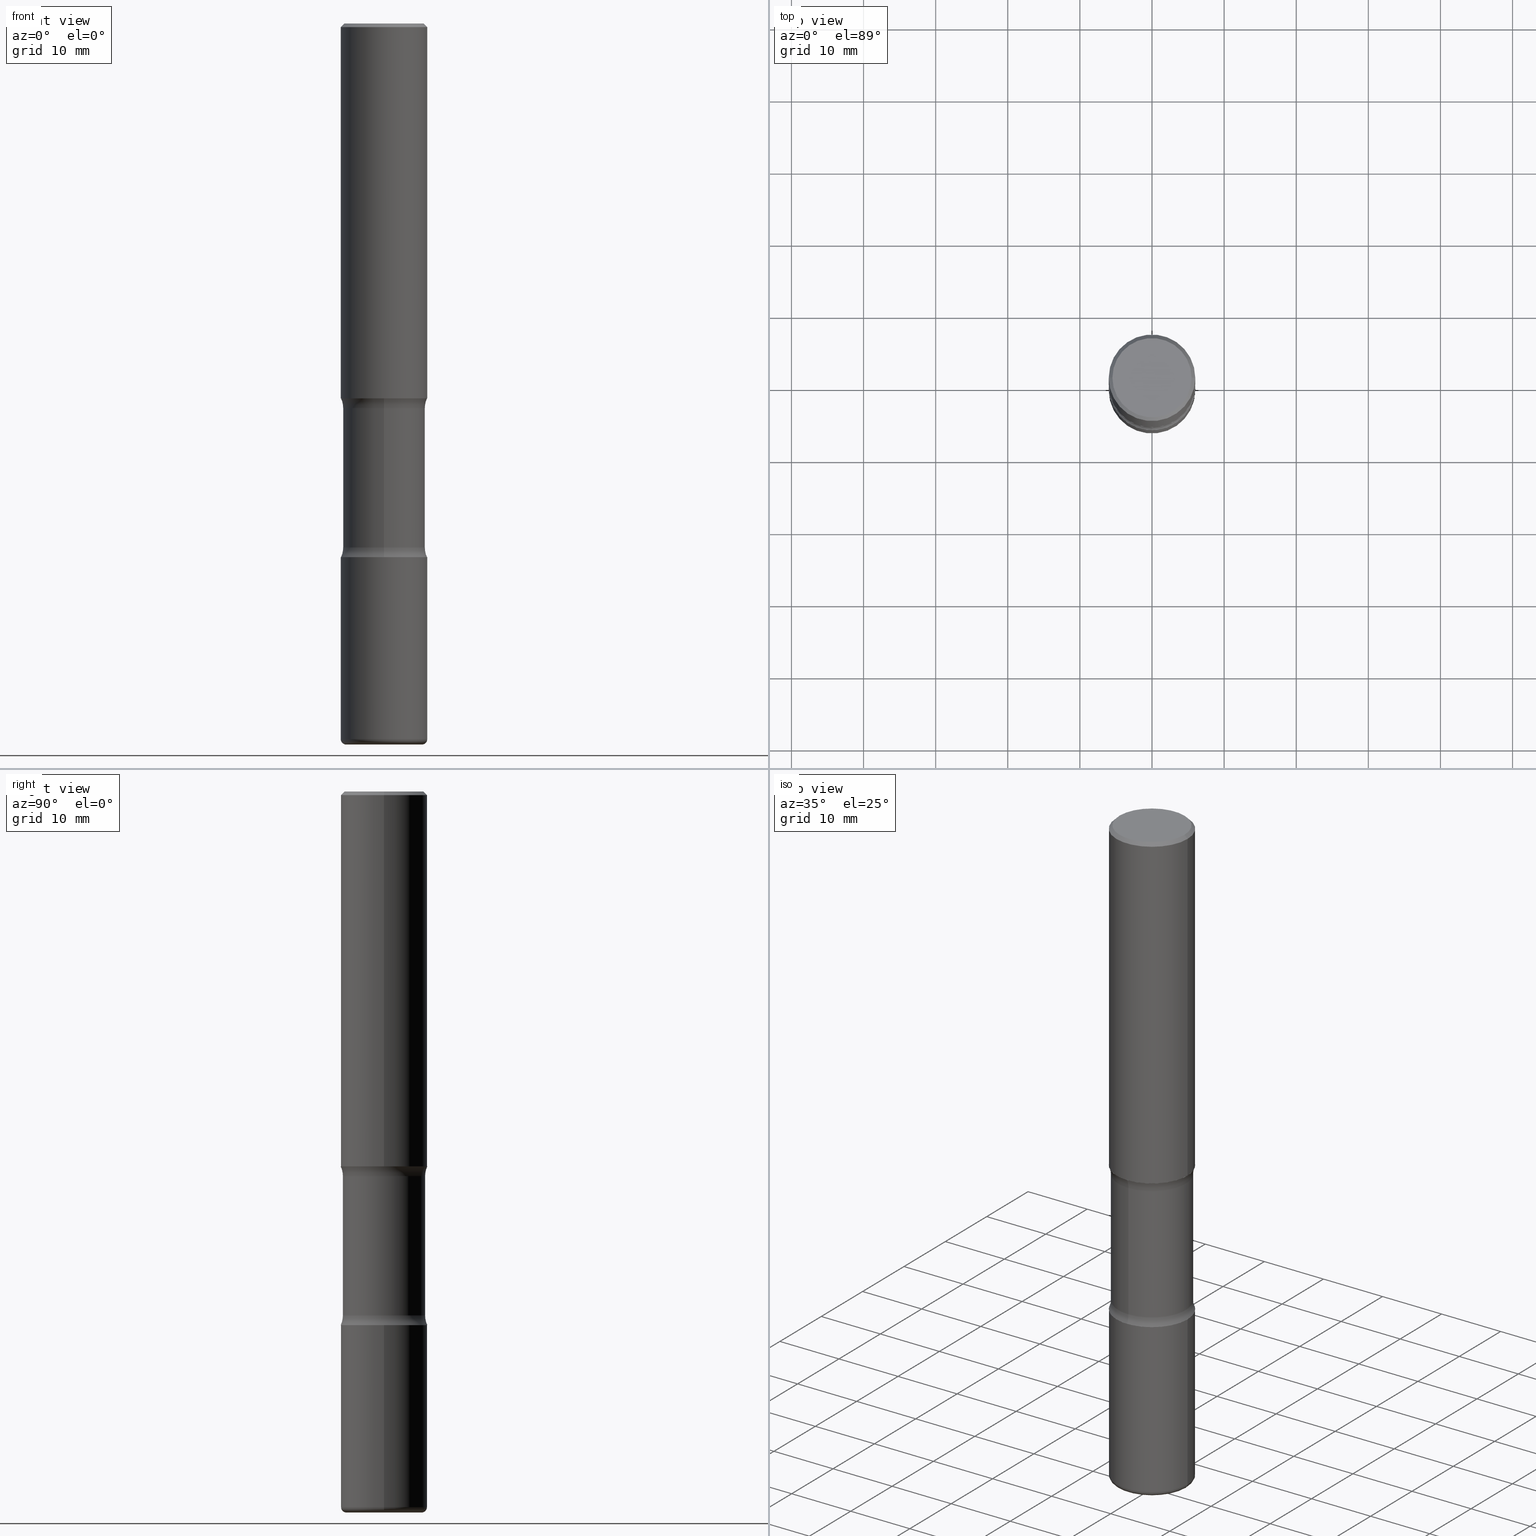
[diagram: canonical four-view strip — front | top / right | iso, engineering-drawing reading convention]
A machine part, canonical four-view strip (front | top / right | iso — engineering-drawing reading convention). The complete STEP part file that produces these views, byte-faithful:
ISO-10303-21;
HEADER;
FILE_DESCRIPTION (( 'STEP AP203' ),
    '1' );
FILE_NAME ('47694.STEP',
    '2024-03-02T07:19:26',
    ( '' ),
    ( '' ),
    'SwSTEP 2.0',
    'SolidWorks 2023',
    '' );
FILE_SCHEMA (( 'CONFIG_CONTROL_DESIGN' ));
ENDSEC;

DATA;
#1 = AXIS2_PLACEMENT_3D ( 'NONE', #298, #459, #68 ) ;
#2 = AXIS2_PLACEMENT_3D ( 'NONE', #234, #534, #149 ) ;
#3 = ORIENTED_EDGE ( 'NONE', *, *, #417, .T. ) ;
#4 = CARTESIAN_POINT ( 'NONE',  ( 0.2161999999999998368, -1.586759460484351002E-15, 4.268512490111238857E-18 ) ) ;
#5 = EDGE_LOOP ( 'NONE', ( #381, #388, #206, #378 ) ) ;
#6 = DIRECTION ( 'NONE',  ( -6.982962677686265922E-15, -1.000000000000000000, 3.376177443336566513E-15 ) ) ;
#7 = AXIS2_PLACEMENT_3D ( 'NONE', #420, #352, #346 ) ;
#8 = AXIS2_PLACEMENT_3D ( 'NONE', #311, #513, #557 ) ;
#9 = EDGE_CURVE ( 'NONE', #103, #114, #559, .T. ) ;
#10 =( NAMED_UNIT ( * ) PLANE_ANGLE_UNIT ( ) SI_UNIT ( $, .RADIAN. ) );
#11 = PERSON_AND_ORGANIZATION ( #426, #186 ) ;
#12 = CARTESIAN_POINT ( 'NONE',  ( -1.579972688886734072E-15, -0.2244000000000073713, -2.100216601173594544 ) ) ;
#13 = ORIENTED_EDGE ( 'NONE', *, *, #16, .T. ) ;
#14 = COORDINATED_UNIVERSAL_TIME_OFFSET ( 5, 0, .BEHIND. ) ;
#15 = ORIENTED_EDGE ( 'NONE', *, *, #275, .T. ) ;
#16 = EDGE_CURVE ( 'NONE', #379, #26, #428, .T. ) ;
#17 = DIRECTION ( 'NONE',  ( -2.438088387897960049E-29, 3.491481338843145188E-15, 1.000000000000000000 ) ) ;
#18 = CONICAL_SURFACE ( 'NONE', #125, 0.2361999999999998823, 0.7853981633974479459 ) ;
#19 = AXIS2_PLACEMENT_3D ( 'NONE', #503, #217, #37 ) ;
#20 = ORIENTED_EDGE ( 'NONE', *, *, #371, .F. ) ;
#21 = DIRECTION ( 'NONE',  ( 2.525985086076564115E-29, -3.376177443336566513E-15, -1.000000000000000000 ) ) ;
#22 = ORIENTED_EDGE ( 'NONE', *, *, #335, .F. ) ;
#23 = CYLINDRICAL_SURFACE ( 'NONE', #133, 0.2361999999999999933 ) ;
#24 = DIRECTION ( 'NONE',  ( 1.000000000000000000, -6.982962677686266711E-15, 4.876176775795935793E-29 ) ) ;
#25 = EDGE_CURVE ( 'NONE', #450, #64, #178, .T. ) ;
#26 = VERTEX_POINT ( 'NONE', #512 ) ;
#27 = DIRECTION ( 'NONE',  ( -2.445468806185136597E-29, 3.491481338843145583E-15, 1.000000000000000000 ) ) ;
#28 = ADVANCED_FACE ( 'NONE', ( #124 ), #485, .T. ) ;
#29 = AXIS2_PLACEMENT_3D ( 'NONE', #315, #472, #86 ) ;
#30 = ORIENTED_EDGE ( 'NONE', *, *, #264, .F. ) ;
#31 = PLANE ( 'NONE',  #396 ) ;
#32 =( CONVERSION_BASED_UNIT ( 'INCH', #271 ) LENGTH_UNIT ( ) NAMED_UNIT ( #312 ) );
#33 = PERSON_AND_ORGANIZATION_ROLE ( 'creator' ) ;
#34 = DIRECTION ( 'NONE',  ( -2.445468806185136597E-29, 3.491481338843145583E-15, 1.000000000000000000 ) ) ;
#35 = PERSON_AND_ORGANIZATION ( #426, #186 ) ;
#36 = DIRECTION ( 'NONE',  ( 2.525985086076564115E-29, -3.376177443336566513E-15, -1.000000000000000000 ) ) ;
#37 = DIRECTION ( 'NONE',  ( 1.000000000000000000, -6.982962677686265133E-15, 0.000000000000000000 ) ) ;
#38 = EDGE_CURVE ( 'NONE', #458, #373, #539, .T. ) ;
#39 = AXIS2_PLACEMENT_3D ( 'NONE', #270, #43, #177 ) ;
#40 = AXIS2_PLACEMENT_3D ( 'NONE', #172, #121, #399 ) ;
#41 = CARTESIAN_POINT ( 'NONE',  ( 5.006363740022212241E-29, -7.147760596879688202E-15, -2.047200000000000131 ) ) ;
#42 = DIRECTION ( 'NONE',  ( 6.982962677686265922E-15, 1.000000000000000000, -3.376177443336566513E-15 ) ) ;
#43 = DIRECTION ( 'NONE',  ( -2.445468806185136597E-29, 3.491481338843145583E-15, 1.000000000000000000 ) ) ;
#44 = EDGE_CURVE ( 'NONE', #64, #450, #71, .T. ) ;
#45 = AXIS2_PLACEMENT_3D ( 'NONE', #350, #74, #550 ) ;
#46 = VERTEX_POINT ( 'NONE', #142 ) ;
#47 = MECHANICAL_CONTEXT ( 'NONE', #430, 'mechanical' ) ;
#48 = EDGE_CURVE ( 'NONE', #119, #556, #253, .T. ) ;
#49 = CARTESIAN_POINT ( 'NONE',  ( -2.397058000421302516E-15, -0.3494000000000099249, -2.860383398826404022 ) ) ;
#50 = PERSON_AND_ORGANIZATION ( #426, #186 ) ;
#51 = EDGE_CURVE ( 'NONE', #509, #384, #252, .T. ) ;
#52 = DIRECTION ( 'NONE',  ( 2.525985086076564115E-29, -3.376177443336566513E-15, -1.000000000000000000 ) ) ;
#53 = DATE_TIME_ROLE ( 'classification_date' ) ;
#54 = PLANE ( 'NONE',  #274 ) ;
#55 = AXIS2_PLACEMENT_3D ( 'NONE', #374, #519, #443 ) ;
#56 = AXIS2_PLACEMENT_3D ( 'NONE', #414, #17, #449 ) ;
#57 = ORIENTED_EDGE ( 'NONE', *, *, #255, .F. ) ;
#58 = DIRECTION ( 'NONE',  ( 6.982962677686265922E-15, 1.000000000000000000, -3.469747663417773452E-15 ) ) ;
#59 = EDGE_CURVE ( 'NONE', #434, #345, #372, .T. ) ;
#60 = ORIENTED_EDGE ( 'NONE', *, *, #542, .T. ) ;
#61 = AXIS2_PLACEMENT_3D ( 'NONE', #543, #424, #454 ) ;
#62 = ORIENTED_EDGE ( 'NONE', *, *, #255, .T. ) ;
#63 = EDGE_CURVE ( 'NONE', #145, #556, #242, .T. ) ;
#64 = VERTEX_POINT ( 'NONE', #393 ) ;
#65 = CARTESIAN_POINT ( 'NONE',  ( 0.2362000000000000766, -1.529059337532966657E-14, -3.907000000000000028 ) ) ;
#66 = FACE_OUTER_BOUND ( 'NONE', #245, .T. ) ;
#67 = ORIENTED_EDGE ( 'NONE', *, *, #188, .T. ) ;
#68 = DIRECTION ( 'NONE',  ( -1.000000000000000000, 7.105427357601001859E-15, 0.000000000000000000 ) ) ;
#69 = DIRECTION ( 'NONE',  ( 1.000000000000000000, -6.982962677686266711E-15, 4.876176775795936353E-29 ) ) ;
#70 = APPROVAL_ROLE ( '' ) ;
#71 = CIRCLE ( 'NONE', #401, 0.2362000000000001321 ) ;
#72 = CIRCLE ( 'NONE', #134, 0.2362000000000002431 ) ;
#73 = EDGE_CURVE ( 'NONE', #556, #119, #106, .T. ) ;
#74 = DIRECTION ( 'NONE',  ( -2.445468806185136597E-29, 3.491481338843145583E-15, 1.000000000000000000 ) ) ;
#75 = DIRECTION ( 'NONE',  ( -1.000000000000000000, 6.982962677686267499E-15, 0.000000000000000000 ) ) ;
#76 = CALENDAR_DATE ( 2024, 2, 3 ) ;
#77 = DIRECTION ( 'NONE',  ( 2.525985086076564115E-29, -3.376177443336566513E-15, -1.000000000000000000 ) ) ;
#78 = ADVANCED_FACE ( 'NONE', ( #306 ), #232, .T. ) ;
#79 = DIRECTION ( 'NONE',  ( -2.445468806185136597E-29, 3.491481338843145583E-15, 1.000000000000000000 ) ) ;
#80 = DIRECTION ( 'NONE',  ( 2.525985086076564115E-29, -3.376177443336566513E-15, -1.000000000000000000 ) ) ;
#81 = CARTESIAN_POINT ( 'NONE',  ( 0.000000000000000000, 0.000000000000000000, 0.000000000000000000 ) ) ;
#82 = ORIENTED_EDGE ( 'NONE', *, *, #44, .T. ) ;
#83 = TOROIDAL_SURFACE ( 'NONE', #514, 0.3493999999999999884, 0.1250000000000000000 ) ;
#84 = TOROIDAL_SURFACE ( 'NONE', #478, 0.3493999999999999884, 0.1250000000000000000 ) ;
#85 = CYLINDRICAL_SURFACE ( 'NONE', #221, 0.2362000000000002153 ) ;
#86 = DIRECTION ( 'NONE',  ( -1.000000000000000000, 6.982962677686267499E-15, 0.000000000000000000 ) ) ;
#87 = FACE_OUTER_BOUND ( 'NONE', #288, .T. ) ;
#88 = PRODUCT ( '47694', '47694', '', ( #47 ) ) ;
#89 = CARTESIAN_POINT ( 'NONE',  ( -0.2361999999999999933, 1.678301941865356591E-15, -1.161852468318208757E-29 ) ) ;
#90 = EDGE_CURVE ( 'NONE', #549, #145, #342, .T. ) ;
#91 = CIRCLE ( 'NONE', #61, 0.1249999999999999029 ) ;
#92 = ORIENTED_EDGE ( 'NONE', *, *, #355, .F. ) ;
#93 = CIRCLE ( 'NONE', #412, 0.2362000000000002431 ) ;
#94 = DIRECTION ( 'NONE',  ( -2.445468806185136877E-29, 3.491481338843145188E-15, 1.000000000000000000 ) ) ;
#95 = EDGE_CURVE ( 'NONE', #373, #458, #167, .T. ) ;
#96 = CARTESIAN_POINT ( 'NONE',  ( 5.070539682259229331E-29, -7.426630284172150130E-15, -2.100216601173595432 ) ) ;
#97 = DIRECTION ( 'NONE',  ( -2.525985086076564115E-29, 3.376177443336566513E-15, 1.000000000000000000 ) ) ;
#98 = PERSON_AND_ORGANIZATION ( #426, #186 ) ;
#99 = DIRECTION ( 'NONE',  ( 6.982962677686265922E-15, 1.000000000000000000, -3.652203200085913934E-15 ) ) ;
#100 = AXIS2_PLACEMENT_3D ( 'NONE', #506, #120, #552 ) ;
#101 = CC_DESIGN_SECURITY_CLASSIFICATION ( #314, ( #331 ) ) ;
#102 = ORIENTED_EDGE ( 'NONE', *, *, #261, .F. ) ;
#103 = VERTEX_POINT ( 'NONE', #256 ) ;
#104 = DIRECTION ( 'NONE',  ( 1.000000000000000000, -6.982962677686269077E-15, 0.000000000000000000 ) ) ;
#105 = LINE ( 'NONE', #423, #344 ) ;
#106 = CIRCLE ( 'NONE', #313, 0.2362000000000001321 ) ;
#107 = CIRCLE ( 'NONE', #516, 0.2243999999999999606 ) ;
#108 = EDGE_LOOP ( 'NONE', ( #496, #82, #249, #138 ) ) ;
#109 = ADVANCED_FACE ( 'NONE', ( #385 ), #429, .F. ) ;
#110 = EDGE_LOOP ( 'NONE', ( #510, #169, #158, #152 ) ) ;
#111 = DIRECTION ( 'NONE',  ( 6.982962677686265922E-15, 1.000000000000000000, -3.376177443336566513E-15 ) ) ;
#112 = DIRECTION ( 'NONE',  ( 6.982962677686265922E-15, 1.000000000000000000, -2.434802133390609815E-15 ) ) ;
#113 = APPROVAL_STATUS ( 'not_yet_approved' ) ;
#114 = VERTEX_POINT ( 'NONE', #291 ) ;
#115 = CARTESIAN_POINT ( 'NONE',  ( 4.890937612370289799E-31, -6.982962677686315028E-17, -0.02000000000000006981 ) ) ;
#116 = COORDINATED_UNIVERSAL_TIME_OFFSET ( 5, 0, .BEHIND. ) ;
#117 = ADVANCED_FACE ( 'NONE', ( #395 ), #502, .F. ) ;
#118 = AXIS2_PLACEMENT_3D ( 'NONE', #289, #334, #150 ) ;
#119 = VERTEX_POINT ( 'NONE', #153 ) ;
#120 = DIRECTION ( 'NONE',  ( 2.525985086076564115E-29, -3.376177443336566513E-15, -1.000000000000000000 ) ) ;
#121 = DIRECTION ( 'NONE',  ( -2.445468806185136597E-29, 3.491481338843145583E-15, 1.000000000000000000 ) ) ;
#122 = ORIENTED_EDGE ( 'NONE', *, *, #44, .F. ) ;
#123 = EDGE_CURVE ( 'NONE', #103, #349, #91, .T. ) ;
#124 = FACE_OUTER_BOUND ( 'NONE', #536, .T. ) ;
#125 = AXIS2_PLACEMENT_3D ( 'NONE', #558, #173, #75 ) ;
#126 = LOCAL_TIME ( 2, 19, 26.00000000000000000, #14 ) ;
#127 = CARTESIAN_POINT ( 'NONE',  ( 9.710227154047748282E-29, -1.362793696358492956E-14, -3.937000000000000277 ) ) ;
#128 = CC_DESIGN_DATE_AND_TIME_ASSIGNMENT ( #521, #53, ( #314 ) ) ;
#129 = APPROVAL_DATE_TIME ( #548, #400 ) ;
#130 = DIRECTION ( 'NONE',  ( 2.525985086076564115E-29, -3.376177443336566513E-15, -1.000000000000000000 ) ) ;
#131 = APPROVAL_ROLE ( '' ) ;
#132 = DIRECTION ( 'NONE',  ( 1.000000000000000000, -6.982962677686265922E-15, 0.000000000000000000 ) ) ;
#133 = AXIS2_PLACEMENT_3D ( 'NONE', #202, #341, #497 ) ;
#134 = AXIS2_PLACEMENT_3D ( 'NONE', #299, #500, #58 ) ;
#135 = LINE ( 'NONE', #484, #333 ) ;
#136 = CARTESIAN_POINT ( 'NONE',  ( 5.070539682259229331E-29, -7.426630284172150130E-15, -2.100216601173595432 ) ) ;
#137 = PRODUCT_DEFINITION_SHAPE ( 'NONE', 'NONE',  #287 ) ;
#138 = ORIENTED_EDGE ( 'NONE', *, *, #166, .F. ) ;
#139 = APPROVAL_STATUS ( 'not_yet_approved' ) ;
#140 = DIRECTION ( 'NONE',  ( 6.860497997771529985E-15, 1.000000000000000000, 0.000000000000000000 ) ) ;
#141 = AXIS2_PLACEMENT_3D ( 'NONE', #461, #488, #132 ) ;
#142 = CARTESIAN_POINT ( 'NONE',  ( -1.620449627073587747E-15, -0.2362000000000074318, -2.047199999999999243 ) ) ;
#143 = ADVANCED_FACE ( 'NONE', ( #493 ), #23, .T. ) ;
#144 = AXIS2_PLACEMENT_3D ( 'NONE', #154, #416, #24 ) ;
#145 = VERTEX_POINT ( 'NONE', #65 ) ;
#146 = PLANE ( 'NONE',  #118 ) ;
#147 = ADVANCED_FACE ( 'NONE', ( #499 ), #83, .F. ) ;
#148 = ORIENTED_EDGE ( 'NONE', *, *, #525, .T. ) ;
#149 = DIRECTION ( 'NONE',  ( 1.000000000000000000, -6.982962677686269077E-15, 0.000000000000000000 ) ) ;
#150 = DIRECTION ( 'NONE',  ( -1.000000000000000000, 6.982962677686265922E-15, -4.876176775795935793E-29 ) ) ;
#151 = EDGE_CURVE ( 'NONE', #487, #481, #283, .T. ) ;
#152 = ORIENTED_EDGE ( 'NONE', *, *, #48, .F. ) ;
#153 = CARTESIAN_POINT ( 'NONE',  ( -0.2362000000000001321, -1.022834771985753829E-14, -2.913400000000000212 ) ) ;
#154 = CARTESIAN_POINT ( 'NONE',  ( 0.000000000000000000, 0.000000000000000000, 0.000000000000000000 ) ) ;
#155 = CIRCLE ( 'NONE', #141, 0.2362000000000002431 ) ;
#156 = PERSON_AND_ORGANIZATION ( #426, #186 ) ;
#157 = LOCAL_TIME ( 2, 19, 26.00000000000000000, #226 ) ;
#158 = ORIENTED_EDGE ( 'NONE', *, *, #63, .T. ) ;
#159 = DIRECTION ( 'NONE',  ( 2.525985086076564115E-29, -3.376177443336566513E-15, -1.000000000000000000 ) ) ;
#160 = PERSON_AND_ORGANIZATION ( #426, #186 ) ;
#161 = ORIENTED_EDGE ( 'NONE', *, *, #404, .F. ) ;
#162 = ADVANCED_FACE ( 'NONE', ( #250 ), #31, .T. ) ;
#163 = DATE_TIME_ROLE ( 'creation_date' ) ;
#164 = DIRECTION ( 'NONE',  ( -2.445468806185136597E-29, 3.491481338843145583E-15, 1.000000000000000000 ) ) ;
#165 = DIRECTION ( 'NONE',  ( 1.000000000000000000, -6.982962677686266711E-15, 4.876176775795935793E-29 ) ) ;
#166 = EDGE_CURVE ( 'NONE', #345, #434, #406, .T. ) ;
#167 = CIRCLE ( 'NONE', #530, 0.2161999999999998368 ) ;
#168 = AXIS2_PLACEMENT_3D ( 'NONE', #49, #441, #140 ) ;
#169 = ORIENTED_EDGE ( 'NONE', *, *, #171, .T. ) ;
#170 = DIRECTION ( 'NONE',  ( 6.982962677686265922E-15, 1.000000000000000000, -3.469747663417773452E-15 ) ) ;
#171 = EDGE_CURVE ( 'NONE', #481, #145, #155, .T. ) ;
#172 = CARTESIAN_POINT ( 'NONE',  ( 9.554446625765329033E-29, -1.364121759086017004E-14, -3.907000000000000028 ) ) ;
#173 = DIRECTION ( 'NONE',  ( 2.445468806185136597E-29, -3.491481338843145583E-15, -1.000000000000000000 ) ) ;
#174 = DIRECTION ( 'NONE',  ( 1.000000000000000000, -6.982962677686269077E-15, 0.000000000000000000 ) ) ;
#175 = APPROVAL ( #113, 'UNSPECIFIED' ) ;
#176 = DIRECTION ( 'NONE',  ( 2.525985086076564115E-29, -3.376177443336566513E-15, -1.000000000000000000 ) ) ;
#177 = DIRECTION ( 'NONE',  ( 1.000000000000000000, -6.982962677686266711E-15, 4.876217060660159599E-29 ) ) ;
#178 = CIRCLE ( 'NONE', #477, 0.2362000000000001321 ) ;
#179 = LOCAL_TIME ( 2, 19, 26.00000000000000000, #116 ) ;
#180 = DIRECTION ( 'NONE',  ( 6.982962677686265922E-15, 1.000000000000000000, -2.313165108945183485E-15 ) ) ;
#181 = PERSON_AND_ORGANIZATION ( #426, #186 ) ;
#182 = CARTESIAN_POINT ( 'NONE',  ( 9.554446625765329033E-29, -1.364121759086017004E-14, -3.907000000000000028 ) ) ;
#183 = MANIFOLD_SOLID_BREP ( 'Body-Move/Copy2[4]', #241 ) ;
#184 = MANIFOLD_SOLID_BREP ( 'Body-Move/Copy2[1]', #553 ) ;
#185 = VECTOR ( 'NONE', #94, 39.37007874015748143 ) ;
#186 = ORGANIZATION ( 'UNSPECIFIED', 'UNSPECIFIED', '' ) ;
#187 = FACE_OUTER_BOUND ( 'NONE', #327, .T. ) ;
#188 = EDGE_CURVE ( 'NONE', #26, #114, #470, .T. ) ;
#189 =( NAMED_UNIT ( * ) SI_UNIT ( $, .STERADIAN. ) SOLID_ANGLE_UNIT ( ) );
#190 = DIRECTION ( 'NONE',  ( 1.000000000000000000, -6.982962677686265922E-15, 0.000000000000000000 ) ) ;
#191 = EDGE_LOOP ( 'NONE', ( #30, #305, #456, #60 ) ) ;
#192 = APPROVAL_DATE_TIME ( #446, #300 ) ;
#193 = DIRECTION ( 'NONE',  ( 1.000000000000000000, -6.982962677686269077E-15, 0.000000000000000000 ) ) ;
#194 = FACE_OUTER_BOUND ( 'NONE', #448, .T. ) ;
#195 = ORIENTED_EDGE ( 'NONE', *, *, #90, .T. ) ;
#196 = AXIS2_PLACEMENT_3D ( 'NONE', #408, #130, #526 ) ;
#197 = VECTOR ( 'NONE', #397, 39.37007874015748143 ) ;
#198 = ORIENTED_EDGE ( 'NONE', *, *, #355, .T. ) ;
#199 = CARTESIAN_POINT ( 'NONE',  ( 0.2362000000000002153, -1.649375784469497708E-15, 1.151752954443001069E-29 ) ) ;
#200 = ADVANCED_FACE ( 'NONE', ( #87 ), #18, .T. ) ;
#201 = ORIENTED_EDGE ( 'NONE', *, *, #335, .T. ) ;
#202 = CARTESIAN_POINT ( 'NONE',  ( 0.000000000000000000, 0.000000000000000000, 0.000000000000000000 ) ) ;
#203 = CARTESIAN_POINT ( 'NONE',  ( -0.2062000000000002442, -1.212186927944147467E-14, -3.936999999999999389 ) ) ;
#204 = ORIENTED_EDGE ( 'NONE', *, *, #90, .F. ) ;
#205 = CC_DESIGN_APPROVAL ( #300, ( #314 ) ) ;
#206 = ORIENTED_EDGE ( 'NONE', *, *, #73, .F. ) ;
#207 = CARTESIAN_POINT ( 'NONE',  ( 1.691236525744688514E-28, -3.314065279273575751E-15, -3.937000000000000277 ) ) ;
#208 = CALENDAR_DATE ( 2024, 2, 3 ) ;
#209 = ORIENTED_EDGE ( 'NONE', *, *, #16, .F. ) ;
#210 = DIRECTION ( 'NONE',  ( 2.438088387897960049E-29, -3.491481338843145188E-15, -1.000000000000000000 ) ) ;
#211 = DIRECTION ( 'NONE',  ( 6.982962677686265922E-15, 1.000000000000000000, -2.434802133390609815E-15 ) ) ;
#212 = ORIENTED_EDGE ( 'NONE', *, *, #264, .T. ) ;
#213 = CARTESIAN_POINT ( 'NONE',  ( 7.124628819939777829E-29, -1.017208173258562247E-14, -2.913400000000000212 ) ) ;
#214 = FACE_OUTER_BOUND ( 'NONE', #191, .T. ) ;
#215 = AXIS2_PLACEMENT_3D ( 'NONE', #96, #279, #99 ) ;
#216 = DIRECTION ( 'NONE',  ( -2.445468806185136597E-29, 3.491481338843145583E-15, 1.000000000000000000 ) ) ;
#217 = DIRECTION ( 'NONE',  ( -2.445468806185136597E-29, 3.491481338843145583E-15, 1.000000000000000000 ) ) ;
#218 = ORIENTED_EDGE ( 'NONE', *, *, #188, .F. ) ;
#219 = CIRCLE ( 'NONE', #507, 0.1250000000000000000 ) ;
#220 = ADVANCED_BREP_SHAPE_REPRESENTATION ( '47694', ( #184, #375, #183, #254 ), #433 ) ;
#221 = AXIS2_PLACEMENT_3D ( 'NONE', #81, #263, #165 ) ;
#222 = ORIENTED_EDGE ( 'NONE', *, *, #59, .F. ) ;
#223 = APPLICATION_PROTOCOL_DEFINITION ( 'international standard', 'config_control_design', 1994, #430 ) ;
#224 = DIRECTION ( 'NONE',  ( -1.000000000000000000, 6.982962677686265922E-15, -4.883557194083112340E-29 ) ) ;
#225 = ORIENTED_EDGE ( 'NONE', *, *, #166, .T. ) ;
#226 = COORDINATED_UNIVERSAL_TIME_OFFSET ( 5, 0, .BEHIND. ) ;
#227 = CC_DESIGN_PERSON_AND_ORGANIZATION_ASSIGNMENT ( #156, #33, ( #287 ) ) ;
#228 = PERSON_AND_ORGANIZATION_ROLE ( 'classification_officer' ) ;
#229 = DIRECTION ( 'NONE',  ( 6.982962677686265922E-15, 1.000000000000000000, -2.434802133390609421E-15 ) ) ;
#230 = APPLICATION_PROTOCOL_DEFINITION ( 'international standard', 'config_control_design', 1994, #321 ) ;
#231 = CARTESIAN_POINT ( 'NONE',  ( 0.2361999999999998823, -1.690279253850498179E-15, -0.02000000000000006981 ) ) ;
#232 = TOROIDAL_SURFACE ( 'NONE', #45, 0.2062000000000002442, 0.02999999999999969705 ) ;
#233 = APPROVAL_PERSON_ORGANIZATION ( #181, #400, #131 ) ;
#234 = CARTESIAN_POINT ( 'NONE',  ( 7.124628819939777829E-29, -1.017208173258562247E-14, -2.913400000000000212 ) ) ;
#235 = CARTESIAN_POINT ( 'NONE',  ( -2.397058000421320660E-15, -0.3494000000000072048, -2.100216601173594544 ) ) ;
#236 = CC_DESIGN_PERSON_AND_ORGANIZATION_ASSIGNMENT ( #50, #228, ( #314 ) ) ;
#237 = LINE ( 'NONE', #318, #353 ) ;
#238 = ORIENTED_EDGE ( 'NONE', *, *, #9, .T. ) ;
#239 = CARTESIAN_POINT ( 'NONE',  ( 6.994978375559792251E-29, -9.986975258939122984E-15, -2.860383398826405354 ) ) ;
#240 = ORIENTED_EDGE ( 'NONE', *, *, #38, .T. ) ;
#241 = CLOSED_SHELL ( 'NONE', ( #464, #147, #296, #527, #109, #308, #508, #551 ) ) ;
#242 = LINE ( 'NONE', #199, #452 ) ;
#243 = CARTESIAN_POINT ( 'NONE',  ( 9.710227154047748282E-29, -1.362793696358492956E-14, -3.937000000000000277 ) ) ;
#244 = CIRCLE ( 'NONE', #524, 0.2362000000000002431 ) ;
#245 = EDGE_LOOP ( 'NONE', ( #240, #365 ) ) ;
#246 = DIRECTION ( 'NONE',  ( -1.000000000000000000, 6.982962677686265922E-15, -4.876176775795935793E-29 ) ) ;
#247 = EDGE_LOOP ( 'NONE', ( #148, #492, #531, #204 ) ) ;
#248 = CARTESIAN_POINT ( 'NONE',  ( 6.994978375559792251E-29, -9.986975258939122984E-15, -2.860383398826405354 ) ) ;
#249 = ORIENTED_EDGE ( 'NONE', *, *, #404, .T. ) ;
#250 = FACE_OUTER_BOUND ( 'NONE', #410, .T. ) ;
#251 = FACE_OUTER_BOUND ( 'NONE', #5, .T. ) ;
#252 = CIRCLE ( 'NONE', #322, 0.2362000000000001321 ) ;
#253 = CIRCLE ( 'NONE', #2, 0.2362000000000001321 ) ;
#254 = AXIS2_PLACEMENT_3D ( 'NONE', #479, #473, #436 ) ;
#255 = EDGE_CURVE ( 'NONE', #384, #114, #219, .T. ) ;
#256 = CARTESIAN_POINT ( 'NONE',  ( 1.566976824872848494E-15, 0.2243999999999925499, -2.100216601173596320 ) ) ;
#257 = CYLINDRICAL_SURFACE ( 'NONE', #554, 0.2243999999999999329 ) ;
#258 = DATE_AND_TIME ( #76, #540 ) ;
#259 = EDGE_LOOP ( 'NONE', ( #15, #336 ) ) ;
#260 = DIRECTION ( 'NONE',  ( 1.000000000000000000, -6.982962677686266711E-15, 4.876217060660159599E-29 ) ) ;
#261 = EDGE_CURVE ( 'NONE', #379, #103, #292, .T. ) ;
#262 = ORIENTED_EDGE ( 'NONE', *, *, #95, .F. ) ;
#263 = DIRECTION ( 'NONE',  ( -2.445468806185136597E-29, 3.491481338843145583E-15, 1.000000000000000000 ) ) ;
#264 = EDGE_CURVE ( 'NONE', #379, #46, #303, .T. ) ;
#265 = CARTESIAN_POINT ( 'NONE',  ( 6.990709676060807691E-29, -9.993088279580958225E-15, -2.860383398826405354 ) ) ;
#266 = CIRCLE ( 'NONE', #168, 0.1250000000000000000 ) ;
#267 = AXIS2_PLACEMENT_3D ( 'NONE', #348, #380, #387 ) ;
#268 = EDGE_LOOP ( 'NONE', ( #422, #198, #67, #57 ) ) ;
#269 =( LENGTH_UNIT ( ) NAMED_UNIT ( * ) SI_UNIT ( $, .METRE. ) );
#270 = CARTESIAN_POINT ( 'NONE',  ( -1.043851414335219820E-46, 1.490343170380447200E-32, 4.268512490100411279E-18 ) ) ;
#271 = LENGTH_MEASURE_WITH_UNIT ( LENGTH_MEASURE( 0.02539999999999999897 ), #269 );
#272 = COORDINATED_UNIVERSAL_TIME_OFFSET ( 5, 0, .BEHIND. ) ;
#273 = UNCERTAINTY_MEASURE_WITH_UNIT (LENGTH_MEASURE( 1.000000000000000082E-05 ), #32, 'distance_accuracy_value', 'NONE');
#274 = AXIS2_PLACEMENT_3D ( 'NONE', #285, #97, #6 ) ;
#275 = EDGE_CURVE ( 'NONE', #384, #509, #437, .T. ) ;
#276 = CIRCLE ( 'NONE', #19, 0.2062000000000002442 ) ;
#277 = ORIENTED_EDGE ( 'NONE', *, *, #123, .F. ) ;
#278 = SECURITY_CLASSIFICATION_LEVEL ( 'unclassified' ) ;
#279 = DIRECTION ( 'NONE',  ( 2.525985086076564115E-29, -3.376177443336566513E-15, -1.000000000000000000 ) ) ;
#280 = EDGE_LOOP ( 'NONE', ( #453, #337, #195, #359 ) ) ;
#281 = CC_DESIGN_DATE_AND_TIME_ASSIGNMENT ( #457, #163, ( #287 ) ) ;
#282 = LINE ( 'NONE', #89, #185 ) ;
#283 = CIRCLE ( 'NONE', #1, 0.02999999999999967970 ) ;
#284 = CALENDAR_DATE ( 2024, 2, 3 ) ;
#285 = CARTESIAN_POINT ( 'NONE',  ( 7.124628819939777829E-29, -1.017208173258562247E-14, -2.913400000000000212 ) ) ;
#286 = ORIENTED_EDGE ( 'NONE', *, *, #340, .T. ) ;
#287 = PRODUCT_DEFINITION ( 'UNKNOWN', '', #331, #370 ) ;
#288 = EDGE_LOOP ( 'NONE', ( #505, #501, #201, #225 ) ) ;
#289 = CARTESIAN_POINT ( 'NONE',  ( 1.509716530915769534E-15, 0.2161999999999998368, -7.527240092128373149E-16 ) ) ;
#290 = EDGE_LOOP ( 'NONE', ( #498, #339 ) ) ;
#291 = CARTESIAN_POINT ( 'NONE',  ( 1.566976824872867821E-15, 0.2243999999999899686, -2.860383398826405799 ) ) ;
#292 = CIRCLE ( 'NONE', #495, 0.2243999999999999606 ) ;
#293 = CIRCLE ( 'NONE', #215, 0.2243999999999999606 ) ;
#294 = ORIENTED_EDGE ( 'NONE', *, *, #491, .T. ) ;
#295 = FACE_OUTER_BOUND ( 'NONE', #392, .T. ) ;
#296 = ADVANCED_FACE ( 'NONE', ( #405 ), #432, .F. ) ;
#297 = ORIENTED_EDGE ( 'NONE', *, *, #371, .T. ) ;
#298 = CARTESIAN_POINT ( 'NONE',  ( -0.2062000000000002442, -1.217607846972284232E-14, -3.907000000000000028 ) ) ;
#299 = CARTESIAN_POINT ( 'NONE',  ( 4.936620538380257512E-29, -7.247636831167487464E-15, -2.047200000000000131 ) ) ;
#300 = APPROVAL ( #139, 'UNSPECIFIED' ) ;
#301 = DIRECTION ( 'NONE',  ( 1.000000000000000000, -6.982962677686267499E-15, 0.000000000000000000 ) ) ;
#302 = DIRECTION ( 'NONE',  ( 2.525985086076564115E-29, -3.376177443336566513E-15, -1.000000000000000000 ) ) ;
#303 = CIRCLE ( 'NONE', #523, 0.1249999999999999029 ) ;
#304 = LOCAL_TIME ( 2, 19, 26.00000000000000000, #272 ) ;
#305 = ORIENTED_EDGE ( 'NONE', *, *, #417, .F. ) ;
#306 = FACE_OUTER_BOUND ( 'NONE', #247, .T. ) ;
#307 = CARTESIAN_POINT ( 'NONE',  ( 4.936620538380257512E-29, -7.247636831167487464E-15, -2.047200000000000131 ) ) ;
#308 = ADVANCED_FACE ( 'NONE', ( #476 ), #54, .F. ) ;
#309 = FACE_OUTER_BOUND ( 'NONE', #533, .T. ) ;
#310 = ORIENTED_EDGE ( 'NONE', *, *, #261, .T. ) ;
#311 = CARTESIAN_POINT ( 'NONE',  ( 5.088323202950023588E-29, -7.401163270367792936E-15, -2.100216601173595432 ) ) ;
#312 = DIMENSIONAL_EXPONENTS ( 1.000000000000000000, 0.000000000000000000, 0.000000000000000000, 0.000000000000000000, 0.000000000000000000, 0.000000000000000000, 0.000000000000000000 ) ;
#313 = AXIS2_PLACEMENT_3D ( 'NONE', #213, #79, #104 ) ;
#314 = SECURITY_CLASSIFICATION ( '', '', #278 ) ;
#315 = CARTESIAN_POINT ( 'NONE',  ( 4.890937612370289799E-31, -6.982962677686315028E-17, -0.02000000000000006981 ) ) ;
#316 = FACE_OUTER_BOUND ( 'NONE', #110, .T. ) ;
#317 = SHAPE_DEFINITION_REPRESENTATION ( #137, #220 ) ;
#318 = CARTESIAN_POINT ( 'NONE',  ( -0.2361999999999998823, 1.579546157692632438E-15, -0.02000000000000006981 ) ) ;
#319 = CC_DESIGN_PERSON_AND_ORGANIZATION_ASSIGNMENT ( #35, #391, ( #331 ) ) ;
#320 = EDGE_LOOP ( 'NONE', ( #518, #415 ) ) ;
#321 = APPLICATION_CONTEXT ( 'configuration controlled 3d designs of mechanical parts and assemblies' ) ;
#322 = AXIS2_PLACEMENT_3D ( 'NONE', #389, #545, #180 ) ;
#323 = AXIS2_PLACEMENT_3D ( 'NONE', #421, #27, #69 ) ;
#324 = PERSON_AND_ORGANIZATION_ROLE ( 'design_owner' ) ;
#325 = DIRECTION ( 'NONE',  ( -2.445468806185136877E-29, 3.491481338843145188E-15, 1.000000000000000000 ) ) ;
#326 = PRODUCT_RELATED_PRODUCT_CATEGORY ( 'detail', '', ( #88 ) ) ;
#327 = EDGE_LOOP ( 'NONE', ( #332, #122 ) ) ;
#328 = APPROVAL_ROLE ( '' ) ;
#329 = CARTESIAN_POINT ( 'NONE',  ( 6.990709676060807691E-29, -9.993088279580958225E-15, -2.860383398826405354 ) ) ;
#330 = CLOSED_SHELL ( 'NONE', ( #504, #28, #200, #455, #435, #143 ) ) ;
#331 = PRODUCT_DEFINITION_FORMATION_WITH_SPECIFIED_SOURCE ( 'ANY', '', #88, .NOT_KNOWN. ) ;
#332 = ORIENTED_EDGE ( 'NONE', *, *, #25, .F. ) ;
#333 = VECTOR ( 'NONE', #325, 39.37007874015748143 ) ;
#334 = DIRECTION ( 'NONE',  ( 2.438088387897960049E-29, -3.491481338843145188E-15, -1.000000000000000000 ) ) ;
#335 = EDGE_CURVE ( 'NONE', #458, #345, #237, .T. ) ;
#336 = ORIENTED_EDGE ( 'NONE', *, *, #51, .T. ) ;
#337 = ORIENTED_EDGE ( 'NONE', *, *, #447, .T. ) ;
#338 = PLANE ( 'NONE',  #56 ) ;
#339 = ORIENTED_EDGE ( 'NONE', *, *, #48, .T. ) ;
#340 = EDGE_CURVE ( 'NONE', #64, #345, #282, .T. ) ;
#341 = DIRECTION ( 'NONE',  ( -2.445468806185136597E-29, 3.491481338843145583E-15, 1.000000000000000000 ) ) ;
#342 = CIRCLE ( 'NONE', #7, 0.02999999999999967970 ) ;
#343 = FACE_OUTER_BOUND ( 'NONE', #356, .T. ) ;
#344 = VECTOR ( 'NONE', #538, 39.37007874015748143 ) ;
#345 = VERTEX_POINT ( 'NONE', #480 ) ;
#346 = DIRECTION ( 'NONE',  ( 1.000000000000000000, -6.982962677686277755E-15, 0.000000000000000000 ) ) ;
#347 = CC_DESIGN_PERSON_AND_ORGANIZATION_ASSIGNMENT ( #98, #442, ( #331 ) ) ;
#348 = CARTESIAN_POINT ( 'NONE',  ( 9.627810689950881427E-29, -1.374596203102546184E-14, -3.936999999999999389 ) ) ;
#349 = VERTEX_POINT ( 'NONE', #439 ) ;
#350 = CARTESIAN_POINT ( 'NONE',  ( 9.554446625765329033E-29, -1.364121759086017004E-14, -3.907000000000000028 ) ) ;
#351 = COORDINATED_UNIVERSAL_TIME_OFFSET ( 5, 0, .BEHIND. ) ;
#352 = DIRECTION ( 'NONE',  ( -6.982962677686266711E-15, -1.000000000000000000, 3.491481338843145583E-15 ) ) ;
#353 = VECTOR ( 'NONE', #474, 39.37007874015748143 ) ;
#354 = TOROIDAL_SURFACE ( 'NONE', #8, 0.3493999999999998218, 0.1249999999999999029 ) ;
#355 = EDGE_CURVE ( 'NONE', #509, #26, #266, .T. ) ;
#356 = EDGE_LOOP ( 'NONE', ( #3, #13, #20, #368 ) ) ;
#357 = CARTESIAN_POINT ( 'NONE',  ( 0.2062000000000002442, -1.518584893516437320E-14, -3.936999999999999389 ) ) ;
#358 = DIRECTION ( 'NONE',  ( 6.982962677686265922E-15, 1.000000000000000000, -2.434802133390609421E-15 ) ) ;
#359 = ORIENTED_EDGE ( 'NONE', *, *, #171, .F. ) ;
#360 = CARTESIAN_POINT ( 'NONE',  ( 0.2362000000000001321, -1.182145751705511899E-14, -2.913400000000000212 ) ) ;
#361 = AXIS2_PLACEMENT_3D ( 'NONE', #115, #34, #301 ) ;
#362 = CC_DESIGN_APPROVAL ( #175, ( #331 ) ) ;
#363 = CARTESIAN_POINT ( 'NONE',  ( 5.006363740022212241E-29, -7.147760596879688202E-15, -2.047200000000000131 ) ) ;
#364 = DIRECTION ( 'NONE',  ( 2.525985086076564115E-29, -3.376177443336566513E-15, -1.000000000000000000 ) ) ;
#365 = ORIENTED_EDGE ( 'NONE', *, *, #95, .T. ) ;
#366 = APPROVAL_STATUS ( 'not_yet_approved' ) ;
#367 = DIRECTION ( 'NONE',  ( 6.982962677686265922E-15, 1.000000000000000000, -3.652203200085913934E-15 ) ) ;
#368 = ORIENTED_EDGE ( 'NONE', *, *, #9, .F. ) ;
#369 = DIRECTION ( 'NONE',  ( 1.000000000000000000, -6.860497997771530774E-15, 4.842210945089756248E-29 ) ) ;
#370 = DESIGN_CONTEXT ( 'detailed design', #321, 'design' ) ;
#371 = EDGE_CURVE ( 'NONE', #114, #26, #107, .T. ) ;
#372 = CIRCLE ( 'NONE', #444, 0.2361999999999998823 ) ;
#373 = VERTEX_POINT ( 'NONE', #4 ) ;
#374 = CARTESIAN_POINT ( 'NONE',  ( 5.088323202950023588E-29, -7.401163270367792936E-15, -2.100216601173595432 ) ) ;
#375 = MANIFOLD_SOLID_BREP ( 'Body-Move/Copy2[2]', #330 ) ;
#376 = VECTOR ( 'NONE', #77, 39.37007874015748143 ) ;
#377 = CIRCLE ( 'NONE', #267, 0.2062000000000002442 ) ;
#378 = ORIENTED_EDGE ( 'NONE', *, *, #63, .F. ) ;
#379 = VERTEX_POINT ( 'NONE', #12 ) ;
#380 = DIRECTION ( 'NONE',  ( -2.445468806185136597E-29, 3.491481338843145583E-15, 1.000000000000000000 ) ) ;
#381 = ORIENTED_EDGE ( 'NONE', *, *, #383, .T. ) ;
#382 = DIRECTION ( 'NONE',  ( -2.445468806185136597E-29, 3.491481338843145583E-15, 1.000000000000000000 ) ) ;
#383 = EDGE_CURVE ( 'NONE', #145, #481, #244, .T. ) ;
#384 = VERTEX_POINT ( 'NONE', #528 ) ;
#385 = FACE_OUTER_BOUND ( 'NONE', #320, .T. ) ;
#386 = AXIS2_PLACEMENT_3D ( 'NONE', #537, #210, #246 ) ;
#387 = DIRECTION ( 'NONE',  ( 1.000000000000000000, -6.982962677686265133E-15, 0.000000000000000000 ) ) ;
#388 = ORIENTED_EDGE ( 'NONE', *, *, #511, .T. ) ;
#389 = CARTESIAN_POINT ( 'NONE',  ( 7.124628819939777829E-29, -1.017208173258562247E-14, -2.913400000000000212 ) ) ;
#390 = DIRECTION ( 'NONE',  ( 2.438088387897960049E-29, -3.491481338843145188E-15, -1.000000000000000000 ) ) ;
#391 = PERSON_AND_ORGANIZATION_ROLE ( 'creator' ) ;
#392 = EDGE_LOOP ( 'NONE', ( #413, #286, #222, #161 ) ) ;
#393 = CARTESIAN_POINT ( 'NONE',  ( -0.2362000000000001598, -1.930493169962915017E-15, -2.047200000000000131 ) ) ;
#394 = CARTESIAN_POINT ( 'NONE',  ( 2.439847159583651160E-15, 0.3493999999999899964, -2.860383398826406243 ) ) ;
#395 = FACE_OUTER_BOUND ( 'NONE', #290, .T. ) ;
#396 = AXIS2_PLACEMENT_3D ( 'NONE', #207, #390, #546 ) ;
#397 = DIRECTION ( 'NONE',  ( -2.445468806185136877E-29, 3.491481338843145188E-15, 1.000000000000000000 ) ) ;
#398 = CARTESIAN_POINT ( 'NONE',  ( -1.539495750699834052E-15, -0.2244000000000135608, -3.936999999999999389 ) ) ;
#399 = DIRECTION ( 'NONE',  ( 1.000000000000000000, -6.982962677686266711E-15, 4.883557194083113462E-29 ) ) ;
#400 = APPROVAL ( #366, 'UNSPECIFIED' ) ;
#401 = AXIS2_PLACEMENT_3D ( 'NONE', #363, #517, #193 ) ;
#402 = PERSON_AND_ORGANIZATION ( #426, #186 ) ;
#403 = CALENDAR_DATE ( 2024, 2, 3 ) ;
#404 = EDGE_CURVE ( 'NONE', #450, #434, #135, .T. ) ;
#405 = FACE_OUTER_BOUND ( 'NONE', #440, .T. ) ;
#406 = CIRCLE ( 'NONE', #361, 0.2361999999999998823 ) ;
#407 = CC_DESIGN_APPROVAL ( #400, ( #287 ) ) ;
#408 = CARTESIAN_POINT ( 'NONE',  ( 7.124628819939777829E-29, -1.017208173258562247E-14, -2.913400000000000212 ) ) ;
#409 = DIRECTION ( 'NONE',  ( -6.982962677686266711E-15, -1.000000000000000000, 0.000000000000000000 ) ) ;
#410 = EDGE_LOOP ( 'NONE', ( #544, #419 ) ) ;
#411 = VECTOR ( 'NONE', #36, 39.37007874015748143 ) ;
#412 = AXIS2_PLACEMENT_3D ( 'NONE', #307, #302, #170 ) ;
#413 = ORIENTED_EDGE ( 'NONE', *, *, #25, .T. ) ;
#414 = CARTESIAN_POINT ( 'NONE',  ( 5.006363740022212241E-29, -7.147760596879688202E-15, -2.047200000000000131 ) ) ;
#415 = ORIENTED_EDGE ( 'NONE', *, *, #475, .F. ) ;
#416 = DIRECTION ( 'NONE',  ( -2.445468806185136597E-29, 3.491481338843145583E-15, 1.000000000000000000 ) ) ;
#417 = EDGE_CURVE ( 'NONE', #103, #379, #293, .T. ) ;
#418 = CALENDAR_DATE ( 2024, 2, 3 ) ;
#419 = ORIENTED_EDGE ( 'NONE', *, *, #447, .F. ) ;
#420 = CARTESIAN_POINT ( 'NONE',  ( 0.2062000000000002442, -1.508110449499907983E-14, -3.907000000000000028 ) ) ;
#421 = CARTESIAN_POINT ( 'NONE',  ( 0.000000000000000000, 0.000000000000000000, 0.000000000000000000 ) ) ;
#422 = ORIENTED_EDGE ( 'NONE', *, *, #51, .F. ) ;
#423 = CARTESIAN_POINT ( 'NONE',  ( 0.2361999999999998823, -1.690279253850498179E-15, -0.02000000000000006981 ) ) ;
#424 = DIRECTION ( 'NONE',  ( -1.000000000000000000, 6.982962677686265922E-15, -4.883557194083112340E-29 ) ) ;
#425 = DIRECTION ( 'NONE',  ( -2.445468806185136877E-29, 3.491481338843145188E-15, 1.000000000000000000 ) ) ;
#426 = PERSON ( 'UNSPECIFIED', 'UNSPECIFIED', 'UNSPECIFIED', ('UNSPECIFIED'), ('UNSPECIFIED'), ('UNSPECIFIED') ) ;
#427 = APPROVAL_DATE_TIME ( #258, #175 ) ;
#428 = LINE ( 'NONE', #398, #411 ) ;
#429 = PLANE ( 'NONE',  #100 ) ;
#430 = APPLICATION_CONTEXT ( 'configuration controlled 3d designs of mechanical parts and assemblies' ) ;
#431 = CARTESIAN_POINT ( 'NONE',  ( -0.2362000000000002153, 1.678301941865358169E-15, -1.161852468318209878E-29 ) ) ;
#432 = TOROIDAL_SURFACE ( 'NONE', #55, 0.3493999999999998218, 0.1249999999999999029 ) ;
#433 =( GEOMETRIC_REPRESENTATION_CONTEXT ( 3 ) GLOBAL_UNCERTAINTY_ASSIGNED_CONTEXT ( ( #273 ) ) GLOBAL_UNIT_ASSIGNED_CONTEXT ( ( #32, #10, #189 ) ) REPRESENTATION_CONTEXT ( 'NONE', 'WORKASPACE' ) );
#434 = VERTEX_POINT ( 'NONE', #231 ) ;
#435 = ADVANCED_FACE ( 'NONE', ( #187 ), #338, .F. ) ;
#436 = DIRECTION ( 'NONE',  ( 1.000000000000000000, 0.000000000000000000, 0.000000000000000000 ) ) ;
#437 = CIRCLE ( 'NONE', #196, 0.2362000000000001321 ) ;
#438 = ORIENTED_EDGE ( 'NONE', *, *, #59, .T. ) ;
#439 = CARTESIAN_POINT ( 'NONE',  ( 1.649375784469546815E-15, 0.2361999999999930266, -2.047200000000001019 ) ) ;
#440 = EDGE_LOOP ( 'NONE', ( #102, #212, #489, #277 ) ) ;
#441 = DIRECTION ( 'NONE',  ( 1.000000000000000000, -6.860497997771530774E-15, 4.842210945089756248E-29 ) ) ;
#442 = PERSON_AND_ORGANIZATION_ROLE ( 'design_supplier' ) ;
#443 = DIRECTION ( 'NONE',  ( 6.982962677686265922E-15, 1.000000000000000000, -3.376177443336566513E-15 ) ) ;
#444 = AXIS2_PLACEMENT_3D ( 'NONE', #520, #382, #515 ) ;
#445 = APPROVAL_PERSON_ORGANIZATION ( #11, #300, #328 ) ;
#446 = DATE_AND_TIME ( #284, #304 ) ;
#447 = EDGE_CURVE ( 'NONE', #487, #549, #377, .T. ) ;
#448 = EDGE_LOOP ( 'NONE', ( #92, #541, #62, #297 ) ) ;
#449 = DIRECTION ( 'NONE',  ( 1.000000000000000000, -6.982962677686265922E-15, 4.876176775795935793E-29 ) ) ;
#450 = VERTEX_POINT ( 'NONE', #532 ) ;
#451 = CYLINDRICAL_SURFACE ( 'NONE', #486, 0.2243999999999999329 ) ;
#452 = VECTOR ( 'NONE', #425, 39.37007874015748143 ) ;
#453 = ORIENTED_EDGE ( 'NONE', *, *, #151, .F. ) ;
#454 = DIRECTION ( 'NONE',  ( -6.982962677686264344E-15, -1.000000000000000000, 0.000000000000000000 ) ) ;
#455 = ADVANCED_FACE ( 'NONE', ( #66 ), #146, .F. ) ;
#456 = ORIENTED_EDGE ( 'NONE', *, *, #123, .T. ) ;
#457 = DATE_AND_TIME ( #208, #179 ) ;
#458 = VERTEX_POINT ( 'NONE', #490 ) ;
#459 = DIRECTION ( 'NONE',  ( 7.105427357601001859E-15, 1.000000000000000000, -3.491481338843145583E-15 ) ) ;
#460 = CYLINDRICAL_SURFACE ( 'NONE', #323, 0.2361999999999999933 ) ;
#461 = CARTESIAN_POINT ( 'NONE',  ( 9.554446625765329033E-29, -1.364121759086017004E-14, -3.907000000000000028 ) ) ;
#462 = AXIS2_PLACEMENT_3D ( 'NONE', #265, #176, #358 ) ;
#463 = TOROIDAL_SURFACE ( 'NONE', #40, 0.2062000000000002442, 0.02999999999999969705 ) ;
#464 = ADVANCED_FACE ( 'NONE', ( #343 ), #451, .T. ) ;
#465 = CARTESIAN_POINT ( 'NONE',  ( -1.043851414335219820E-46, 1.490343170380447200E-32, 4.268512490100411279E-18 ) ) ;
#466 = LINE ( 'NONE', #431, #197 ) ;
#467 = CARTESIAN_POINT ( 'NONE',  ( 1.566976824872894642E-15, 0.2243999999999863049, -3.937000000000000721 ) ) ;
#468 = FACE_OUTER_BOUND ( 'NONE', #280, .T. ) ;
#469 = CC_DESIGN_PERSON_AND_ORGANIZATION_ASSIGNMENT ( #402, #324, ( #88 ) ) ;
#470 = CIRCLE ( 'NONE', #462, 0.2243999999999999606 ) ;
#471 = APPROVAL_PERSON_ORGANIZATION ( #160, #175, #70 ) ;
#472 = DIRECTION ( 'NONE',  ( 2.445468806185136597E-29, -3.491481338843145583E-15, -1.000000000000000000 ) ) ;
#473 = DIRECTION ( 'NONE',  ( 0.000000000000000000, 0.000000000000000000, 1.000000000000000000 ) ) ;
#474 = DIRECTION ( 'NONE',  ( -0.7071067811865472397, 2.468850131082253905E-15, -0.7071067811865477948 ) ) ;
#475 = EDGE_CURVE ( 'NONE', #46, #349, #72, .T. ) ;
#476 = FACE_OUTER_BOUND ( 'NONE', #259, .T. ) ;
#477 = AXIS2_PLACEMENT_3D ( 'NONE', #41, #216, #174 ) ;
#478 = AXIS2_PLACEMENT_3D ( 'NONE', #239, #560, #42 ) ;
#479 = CARTESIAN_POINT ( 'NONE',  ( 0.000000000000000000, 0.000000000000000000, 0.000000000000000000 ) ) ;
#480 = CARTESIAN_POINT ( 'NONE',  ( -0.2361999999999998823, 1.579546157692632438E-15, -0.02000000000000006981 ) ) ;
#481 = VERTEX_POINT ( 'NONE', #535 ) ;
#482 = DIRECTION ( 'NONE',  ( 6.860497997771531562E-15, 1.000000000000000000, 0.000000000000000000 ) ) ;
#483 = ADVANCED_FACE ( 'NONE', ( #251 ), #494, .T. ) ;
#484 = CARTESIAN_POINT ( 'NONE',  ( 0.2361999999999999933, -1.649375784469496131E-15, 1.151752954443000088E-29 ) ) ;
#485 = CONICAL_SURFACE ( 'NONE', #29, 0.2361999999999998823, 0.7853981633974479459 ) ;
#486 = AXIS2_PLACEMENT_3D ( 'NONE', #243, #21, #112 ) ;
#487 = VERTEX_POINT ( 'NONE', #203 ) ;
#488 = DIRECTION ( 'NONE',  ( -2.445468806185136597E-29, 3.491481338843145583E-15, 1.000000000000000000 ) ) ;
#489 = ORIENTED_EDGE ( 'NONE', *, *, #475, .T. ) ;
#490 = CARTESIAN_POINT ( 'NONE',  ( -0.2161999999999998368, 1.544631344304201183E-15, 4.268512490089730842E-18 ) ) ;
#491 = EDGE_CURVE ( 'NONE', #373, #434, #105, .T. ) ;
#492 = ORIENTED_EDGE ( 'NONE', *, *, #151, .T. ) ;
#493 = FACE_OUTER_BOUND ( 'NONE', #108, .T. ) ;
#494 = CYLINDRICAL_SURFACE ( 'NONE', #144, 0.2362000000000002153 ) ;
#495 = AXIS2_PLACEMENT_3D ( 'NONE', #136, #364, #367 ) ;
#496 = ORIENTED_EDGE ( 'NONE', *, *, #340, .F. ) ;
#497 = DIRECTION ( 'NONE',  ( 1.000000000000000000, -6.982962677686266711E-15, 4.876176775795936353E-29 ) ) ;
#498 = ORIENTED_EDGE ( 'NONE', *, *, #73, .T. ) ;
#499 = FACE_OUTER_BOUND ( 'NONE', #268, .T. ) ;
#500 = DIRECTION ( 'NONE',  ( 2.525985086076564115E-29, -3.376177443336566513E-15, -1.000000000000000000 ) ) ;
#501 = ORIENTED_EDGE ( 'NONE', *, *, #38, .F. ) ;
#502 = PLANE ( 'NONE',  #386 ) ;
#503 = CARTESIAN_POINT ( 'NONE',  ( 9.627810689950881427E-29, -1.374596203102546184E-14, -3.936999999999999389 ) ) ;
#504 = ADVANCED_FACE ( 'NONE', ( #295 ), #460, .T. ) ;
#505 = ORIENTED_EDGE ( 'NONE', *, *, #491, .F. ) ;
#506 = CARTESIAN_POINT ( 'NONE',  ( 5.006363740022212241E-29, -7.147760596879688202E-15, -2.047200000000000131 ) ) ;
#507 = AXIS2_PLACEMENT_3D ( 'NONE', #394, #224, #409 ) ;
#508 = ADVANCED_FACE ( 'NONE', ( #194 ), #84, .F. ) ;
#509 = VERTEX_POINT ( 'NONE', #529 ) ;
#510 = ORIENTED_EDGE ( 'NONE', *, *, #511, .F. ) ;
#511 = EDGE_CURVE ( 'NONE', #481, #119, #466, .T. ) ;
#512 = CARTESIAN_POINT ( 'NONE',  ( -1.579972688886713168E-15, -0.2244000000000099804, -2.860383398826404466 ) ) ;
#513 = DIRECTION ( 'NONE',  ( 2.525985086076564115E-29, -3.376177443336566513E-15, -1.000000000000000000 ) ) ;
#514 = AXIS2_PLACEMENT_3D ( 'NONE', #248, #159, #111 ) ;
#515 = DIRECTION ( 'NONE',  ( 1.000000000000000000, -6.982962677686267499E-15, 0.000000000000000000 ) ) ;
#516 = AXIS2_PLACEMENT_3D ( 'NONE', #329, #52, #229 ) ;
#517 = DIRECTION ( 'NONE',  ( -2.445468806185136597E-29, 3.491481338843145583E-15, 1.000000000000000000 ) ) ;
#518 = ORIENTED_EDGE ( 'NONE', *, *, #542, .F. ) ;
#519 = DIRECTION ( 'NONE',  ( 2.525985086076564115E-29, -3.376177443336566513E-15, -1.000000000000000000 ) ) ;
#520 = CARTESIAN_POINT ( 'NONE',  ( 4.890937612370289799E-31, -6.982962677686315028E-17, -0.02000000000000006981 ) ) ;
#521 = DATE_AND_TIME ( #403, #126 ) ;
#522 = DIRECTION ( 'NONE',  ( -2.445468806185136597E-29, 3.491481338843145583E-15, 1.000000000000000000 ) ) ;
#523 = AXIS2_PLACEMENT_3D ( 'NONE', #235, #369, #482 ) ;
#524 = AXIS2_PLACEMENT_3D ( 'NONE', #182, #522, #190 ) ;
#525 = EDGE_CURVE ( 'NONE', #549, #487, #276, .T. ) ;
#526 = DIRECTION ( 'NONE',  ( 6.982962677686265922E-15, 1.000000000000000000, -2.313165108945183485E-15 ) ) ;
#527 = ADVANCED_FACE ( 'NONE', ( #214 ), #354, .F. ) ;
#528 = CARTESIAN_POINT ( 'NONE',  ( 1.649375784469567917E-15, 0.2361999999999899458, -2.913400000000000656 ) ) ;
#529 = CARTESIAN_POINT ( 'NONE',  ( -1.620449627073565067E-15, -0.2362000000000102629, -2.913399999999999768 ) ) ;
#530 = AXIS2_PLACEMENT_3D ( 'NONE', #465, #164, #260 ) ;
#531 = ORIENTED_EDGE ( 'NONE', *, *, #383, .F. ) ;
#532 = CARTESIAN_POINT ( 'NONE',  ( 0.2362000000000001321, -8.797136381349186305E-15, -2.047200000000000131 ) ) ;
#533 = EDGE_LOOP ( 'NONE', ( #209, #310, #238, #218 ) ) ;
#534 = DIRECTION ( 'NONE',  ( -2.445468806185136597E-29, 3.491481338843145583E-15, 1.000000000000000000 ) ) ;
#535 = CARTESIAN_POINT ( 'NONE',  ( -0.2362000000000000766, -1.196291564899481365E-14, -3.907000000000000028 ) ) ;
#536 = EDGE_LOOP ( 'NONE', ( #262, #294, #438, #22 ) ) ;
#537 = CARTESIAN_POINT ( 'NONE',  ( 7.124628819939777829E-29, -1.017208173258562247E-14, -2.913400000000000212 ) ) ;
#538 = DIRECTION ( 'NONE',  ( 0.7071067811865472397, -7.319954787623254468E-15, -0.7071067811865477948 ) ) ;
#539 = CIRCLE ( 'NONE', #39, 0.2161999999999998368 ) ;
#540 = LOCAL_TIME ( 2, 19, 26.00000000000000000, #351 ) ;
#541 = ORIENTED_EDGE ( 'NONE', *, *, #275, .F. ) ;
#542 = EDGE_CURVE ( 'NONE', #349, #46, #93, .T. ) ;
#543 = CARTESIAN_POINT ( 'NONE',  ( 2.439847159583631044E-15, 0.3493999999999924388, -2.100216601173596320 ) ) ;
#544 = ORIENTED_EDGE ( 'NONE', *, *, #525, .F. ) ;
#545 = DIRECTION ( 'NONE',  ( 2.525985086076564115E-29, -3.376177443336566513E-15, -1.000000000000000000 ) ) ;
#546 = DIRECTION ( 'NONE',  ( -1.000000000000000000, 6.982962677686265922E-15, -4.876176775795935793E-29 ) ) ;
#547 = ADVANCED_FACE ( 'NONE', ( #468 ), #463, .T. ) ;
#548 = DATE_AND_TIME ( #418, #157 ) ;
#549 = VERTEX_POINT ( 'NONE', #357 ) ;
#550 = DIRECTION ( 'NONE',  ( 1.000000000000000000, -6.982962677686266711E-15, 4.883557194083113462E-29 ) ) ;
#551 = ADVANCED_FACE ( 'NONE', ( #309 ), #257, .T. ) ;
#552 = DIRECTION ( 'NONE',  ( 6.982962677686265922E-15, 1.000000000000000000, -3.376177443336566513E-15 ) ) ;
#553 = CLOSED_SHELL ( 'NONE', ( #483, #78, #162, #547, #555, #117 ) ) ;
#554 = AXIS2_PLACEMENT_3D ( 'NONE', #127, #80, #211 ) ;
#555 = ADVANCED_FACE ( 'NONE', ( #316 ), #85, .T. ) ;
#556 = VERTEX_POINT ( 'NONE', #360 ) ;
#557 = DIRECTION ( 'NONE',  ( 6.982962677686265922E-15, 1.000000000000000000, -3.376177443336566513E-15 ) ) ;
#558 = CARTESIAN_POINT ( 'NONE',  ( 4.890937612370289799E-31, -6.982962677686315028E-17, -0.02000000000000006981 ) ) ;
#559 = LINE ( 'NONE', #467, #376 ) ;
#560 = DIRECTION ( 'NONE',  ( 2.525985086076564115E-29, -3.376177443336566513E-15, -1.000000000000000000 ) ) ;
ENDSEC;
END-ISO-10303-21;
